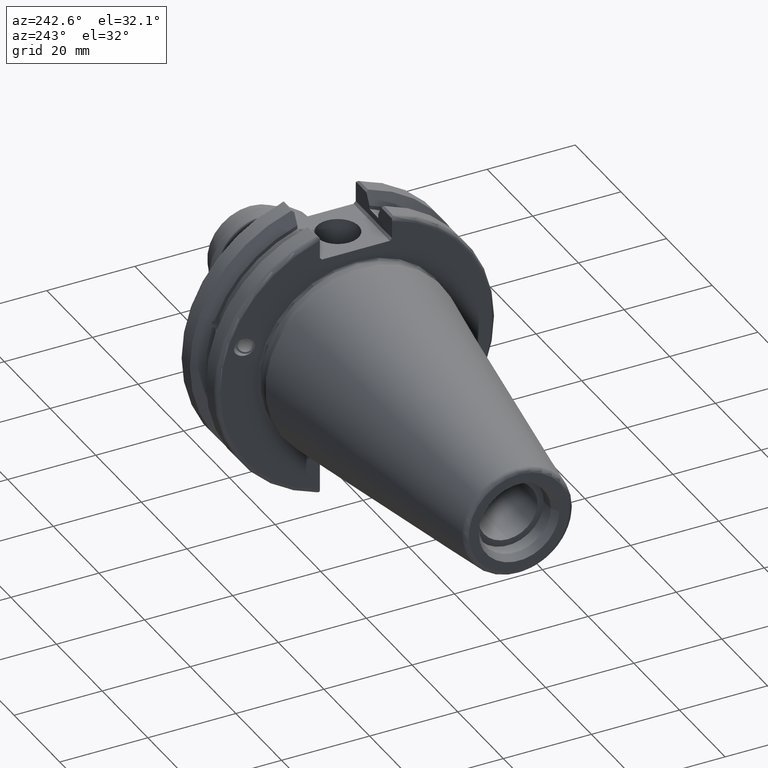
[diagram: clean part render]
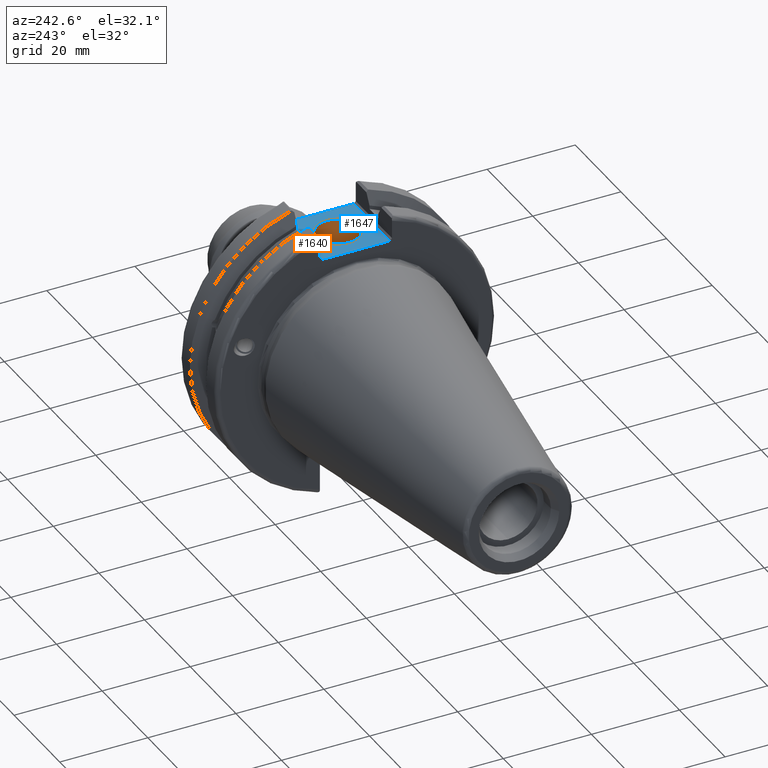
[diagram: same view with the hole feature highlighted: cylindrical wall and planar end face, labeled with their STEP entity ids]
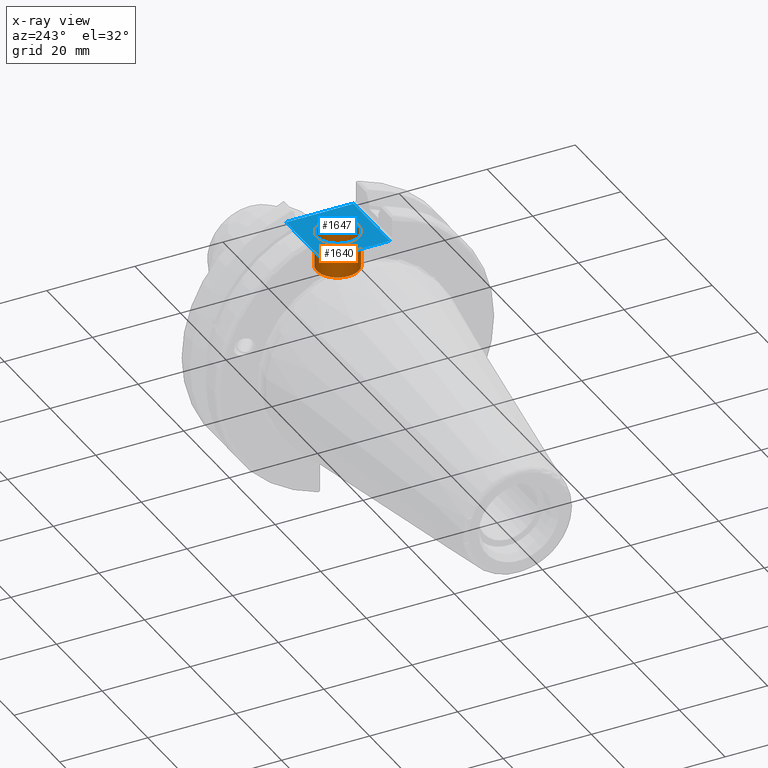
[diagram: x-ray of the same camera — body ghosted, the hole faces saturated]
A machine part, auxiliary view. The highlighted faces form one hole feature of diameter 9.525 mm: the cylindrical wall (entity #1640, orange) and its adjacent planar end face (entity #1647, blue) — they share a circular edge in the B-rep.
The next image is the same camera in x-ray (body ghosted, the hole faces saturated) — the bore reads through the body.
Wall:
#171=CIRCLE('',#1835,4.7625);
#172=CIRCLE('',#1837,4.7625);
#256=FACE_OUTER_BOUND('',#361,.T.);
#361=EDGE_LOOP('',(#1471,#1472,#1473,#1474));
#511=LINE('',#3283,#608);
#608=VECTOR('',#2276,4.7625);
#789=VERTEX_POINT('',#3276);
#791=VERTEX_POINT('',#3281);
#1026=EDGE_CURVE('',#789,#789,#171,.T.);
#1028=EDGE_CURVE('',#791,#791,#172,.T.);
#1029=EDGE_CURVE('',#791,#789,#511,.T.);
#1471=ORIENTED_EDGE('',*,*,#1028,.F.);
#1472=ORIENTED_EDGE('',*,*,#1029,.T.);
#1473=ORIENTED_EDGE('',*,*,#1026,.F.);
#1474=ORIENTED_EDGE('',*,*,#1029,.F.);
#1561=CYLINDRICAL_SURFACE('',#1836,4.7625);
#1640=ADVANCED_FACE('',(#256),#1561,.F.);
#1835=AXIS2_PLACEMENT_3D('',#3277,#2269,#2270);
#1836=AXIS2_PLACEMENT_3D('',#3280,#2272,#2273);
#1837=AXIS2_PLACEMENT_3D('',#3282,#2274,#2275);
#2269=DIRECTION('center_axis',(0.,0.,1.));
#2270=DIRECTION('ref_axis',(1.,0.,0.));
#2272=DIRECTION('center_axis',(0.,0.,1.));
#2273=DIRECTION('ref_axis',(1.,0.,0.));
#2274=DIRECTION('center_axis',(0.,0.,-1.));
#2275=DIRECTION('ref_axis',(1.,0.,0.));
#2276=DIRECTION('',(0.,0.,-1.));
#3276=CARTESIAN_POINT('',(6.3716,-5.83238038093927E-16,17.));
#3277=CARTESIAN_POINT('Origin',(11.1341,0.,17.));
#3280=CARTESIAN_POINT('Origin',(11.1341,0.,21.));
#3281=CARTESIAN_POINT('',(6.3716,-5.83238038093927E-16,25.));
#3282=CARTESIAN_POINT('Origin',(11.1341,0.,25.));
#3283=CARTESIAN_POINT('',(6.3716,-5.83238038093927E-16,21.));
End face:
#70=FACE_BOUND('',#369,.T.);
#105=PLANE('',#1849);
#172=CIRCLE('',#1837,4.7625);
#263=FACE_OUTER_BOUND('',#368,.T.);
#368=EDGE_LOOP('',(#1504,#1505,#1506,#1507));
#369=EDGE_LOOP('',(#1508));
#430=LINE('',#2674,#527);
#470=LINE('',#3013,#567);
#498=LINE('',#3242,#595);
#500=LINE('',#3245,#597);
#527=VECTOR('',#1945,10.);
#567=VECTOR('',#2141,10.);
#595=VECTOR('',#2235,10.);
#597=VECTOR('',#2239,10.);
#665=VERTEX_POINT('',#2671);
#666=VERTEX_POINT('',#2673);
#744=VERTEX_POINT('',#3010);
#745=VERTEX_POINT('',#3012);
#791=VERTEX_POINT('',#3281);
#842=EDGE_CURVE('',#665,#666,#430,.T.);
#948=EDGE_CURVE('',#744,#745,#470,.T.);
#1011=EDGE_CURVE('',#666,#744,#498,.T.);
#1013=EDGE_CURVE('',#745,#665,#500,.T.);
#1028=EDGE_CURVE('',#791,#791,#172,.T.);
#1504=ORIENTED_EDGE('',*,*,#1011,.F.);
#1505=ORIENTED_EDGE('',*,*,#842,.F.);
#1506=ORIENTED_EDGE('',*,*,#1013,.F.);
#1507=ORIENTED_EDGE('',*,*,#948,.F.);
#1508=ORIENTED_EDGE('',*,*,#1028,.T.);
#1647=ADVANCED_FACE('',(#263,#70),#105,.T.);
#1837=AXIS2_PLACEMENT_3D('',#3282,#2274,#2275);
#1849=AXIS2_PLACEMENT_3D('',#3295,#2299,#2300);
#1945=DIRECTION('',(0.,-1.,0.));
#2141=DIRECTION('',(0.,1.,0.));
#2235=DIRECTION('',(-1.,1.31581988103722E-16,0.));
#2239=DIRECTION('',(1.,0.,0.));
#2274=DIRECTION('center_axis',(0.,0.,-1.));
#2275=DIRECTION('ref_axis',(1.,0.,0.));
#2299=DIRECTION('center_axis',(0.,0.,1.));
#2300=DIRECTION('ref_axis',(1.,0.,0.));
#2671=CARTESIAN_POINT('',(19.05,7.69,25.));
#2673=CARTESIAN_POINT('',(19.05,-7.69,25.));
#2674=CARTESIAN_POINT('',(19.05,0.,25.));
#3010=CARTESIAN_POINT('',(3.175,-7.68999999999999,25.));
#3012=CARTESIAN_POINT('',(3.175,7.69,25.));
#3013=CARTESIAN_POINT('',(3.175,15.875,25.));
#3242=CARTESIAN_POINT('',(9.44125,-7.69,25.));
#3245=CARTESIAN_POINT('',(17.87875,7.69,25.));
#3281=CARTESIAN_POINT('',(6.3716,-5.83238038093927E-16,25.));
#3282=CARTESIAN_POINT('Origin',(11.1341,0.,25.));
#3295=CARTESIAN_POINT('Origin',(15.7075,0.,25.));